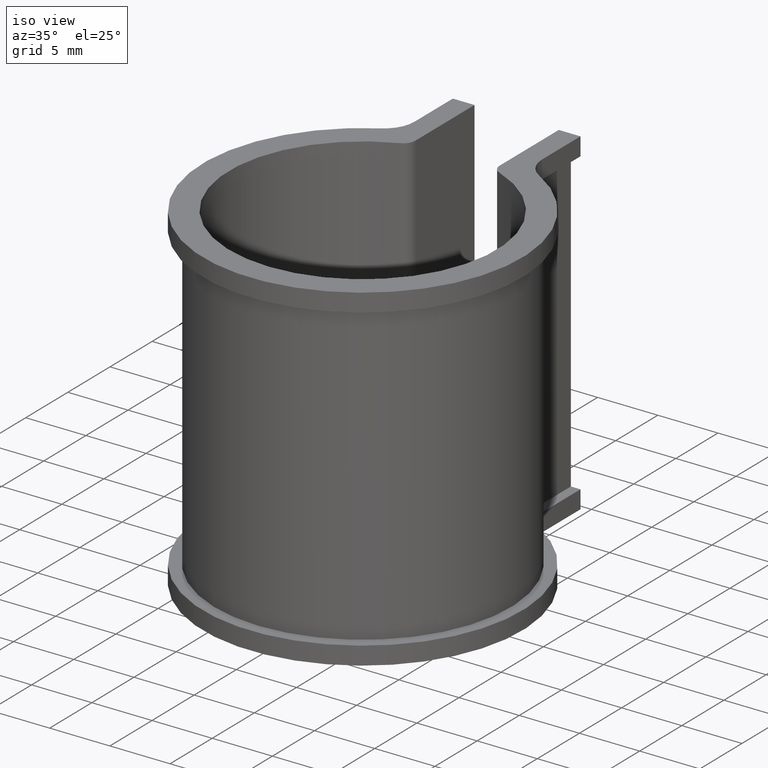
[diagram: clean part render]
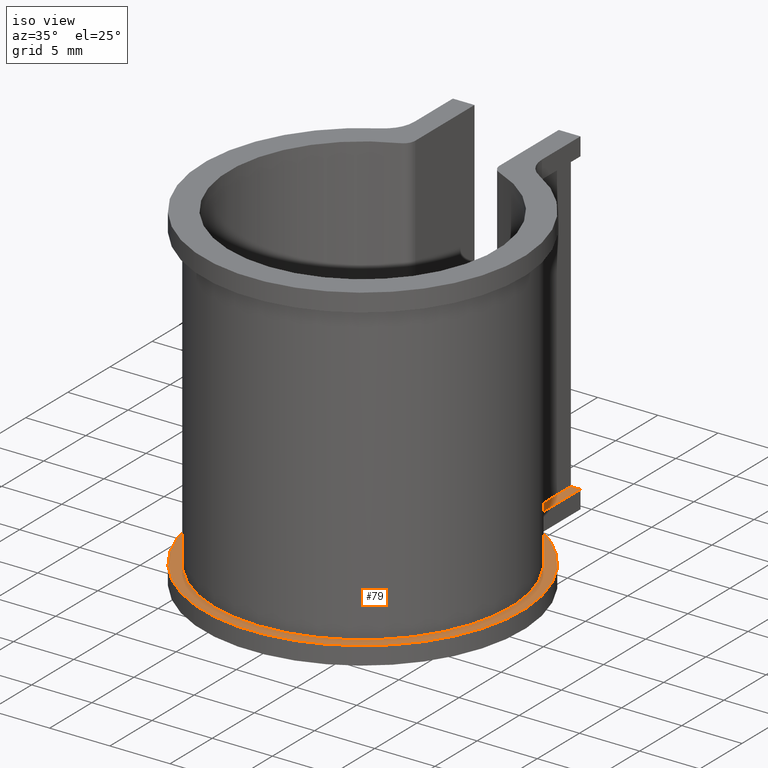
[diagram: same view with one face highlighted and labeled with its STEP entity id]
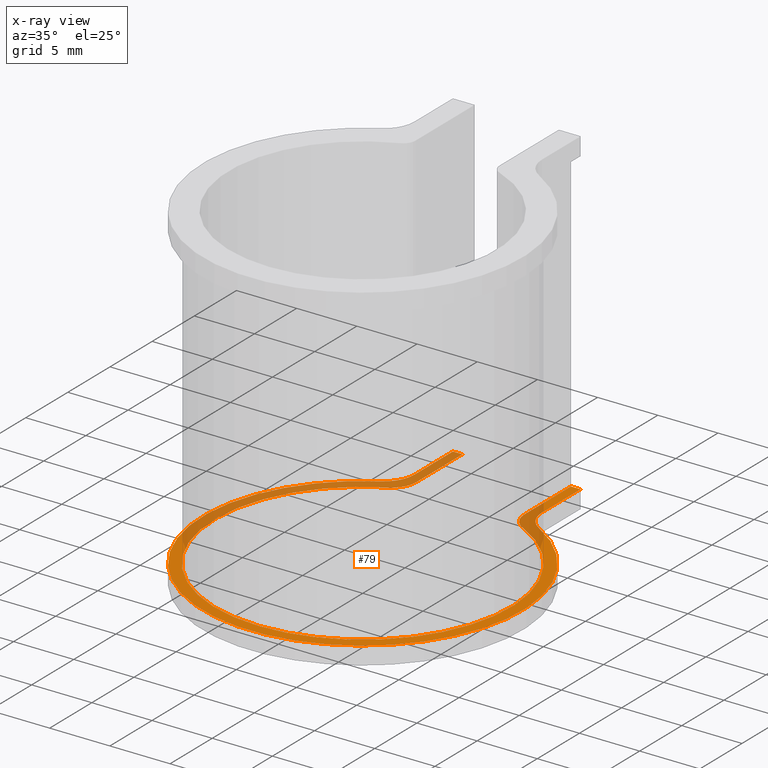
[diagram: x-ray of the same camera — body ghosted, the highlighted face saturated]
A machine part, iso view. The second image highlights one B-rep face of the part: STEP entity #79.
The next image is the same camera in x-ray: the body ghosted, the highlighted face saturated — about 38% of this face is hidden behind the body in this view.
In plain terms, the highlighted planar face has unit normal (0, 0, 1).
Its self-contained STEP definition (entity closure, byte-faithful):
#79 = ADVANCED_FACE( '', ( #110 ), #111, .T. );
#110 = FACE_OUTER_BOUND( '', #162, .T. );
#111 = PLANE( '', #163 );
#162 = EDGE_LOOP( '', ( #246, #247, #248, #249, #250, #251, #252, #253, #254, #255, #256, #257 ) );
#163 = AXIS2_PLACEMENT_3D( '', #258, #259, #260 );
#246 = ORIENTED_EDGE( '', *, *, #453, .F. );
#247 = ORIENTED_EDGE( '', *, *, #454, .T. );
#248 = ORIENTED_EDGE( '', *, *, #455, .F. );
#249 = ORIENTED_EDGE( '', *, *, #439, .T. );
#250 = ORIENTED_EDGE( '', *, *, #456, .T. );
#251 = ORIENTED_EDGE( '', *, *, #457, .T. );
#252 = ORIENTED_EDGE( '', *, *, #458, .T. );
#253 = ORIENTED_EDGE( '', *, *, #459, .T. );
#254 = ORIENTED_EDGE( '', *, *, #460, .T. );
#255 = ORIENTED_EDGE( '', *, *, #461, .T. );
#256 = ORIENTED_EDGE( '', *, *, #462, .F. );
#257 = ORIENTED_EDGE( '', *, *, #463, .T. );
#258 = CARTESIAN_POINT( '', ( 0.000000000000000, 0.000000000000000, -25.0000000000000 ) );
#259 = DIRECTION( '', ( 0.000000000000000, 0.000000000000000, 1.00000000000000 ) );
#260 = DIRECTION( '', ( 0.000000000000000, 1.00000000000000, 0.000000000000000 ) );
#439 = EDGE_CURVE( '', #508, #521, #523, .T. );
#453 = EDGE_CURVE( '', #548, #549, #550, .T. );
#454 = EDGE_CURVE( '', #548, #551, #552, .T. );
#455 = EDGE_CURVE( '', #508, #551, #553, .T. );
#456 = EDGE_CURVE( '', #521, #554, #555, .T. );
#457 = EDGE_CURVE( '', #554, #556, #557, .F. );
#458 = EDGE_CURVE( '', #556, #558, #559, .T. );
#459 = EDGE_CURVE( '', #558, #560, #561, .F. );
#460 = EDGE_CURVE( '', #560, #562, #563, .T. );
#461 = EDGE_CURVE( '', #562, #564, #565, .T. );
#462 = EDGE_CURVE( '', #566, #564, #567, .T. );
#463 = EDGE_CURVE( '', #566, #549, #568, .T. );
#508 = VERTEX_POINT( '', #632 );
#521 = VERTEX_POINT( '', #651 );
#523 = LINE( '', #654, #655 );
#548 = VERTEX_POINT( '', #687 );
#549 = VERTEX_POINT( '', #688 );
#550 = CIRCLE( '', #689, 12.3100000000000 );
#551 = VERTEX_POINT( '', #690 );
#552 = CIRCLE( '', #691, 2.00000000000000 );
#553 = LINE( '', #692, #693 );
#554 = VERTEX_POINT( '', #694 );
#555 = LINE( '', #695, #696 );
#556 = VERTEX_POINT( '', #697 );
#557 = CIRCLE( '', #698, 2.50000000000000 );
#558 = VERTEX_POINT( '', #699 );
#559 = CIRCLE( '', #700, 13.2600000000000 );
#560 = VERTEX_POINT( '', #701 );
#561 = CIRCLE( '', #702, 2.50000000000000 );
#562 = VERTEX_POINT( '', #703 );
#563 = LINE( '', #704, #705 );
#564 = VERTEX_POINT( '', #706 );
#565 = LINE( '', #707, #708 );
#566 = VERTEX_POINT( '', #709 );
#567 = LINE( '', #710, #711 );
#568 = CIRCLE( '', #712, 2.00000000000000 );
#632 = CARTESIAN_POINT( '', ( -4.49999999999999, 18.2580146622353, -25.0000000000000 ) );
#651 = CARTESIAN_POINT( '', ( -5.30000000000000, 18.2580146622353, -25.0000000000000 ) );
#654 = CARTESIAN_POINT( '', ( -3.50000000000000, 18.2580146622353, -25.0000000000000 ) );
#655 = VECTOR( '', #799, 1000.00000000000 );
#687 = CARTESIAN_POINT( '', ( -5.59154437456324, 10.9668013343586, -25.0000000000000 ) );
#688 = CARTESIAN_POINT( '', ( 5.59154437456324, 10.9668013343586, -25.0000000000000 ) );
#689 = AXIS2_PLACEMENT_3D( '', #825, #826, #827 );
#690 = CARTESIAN_POINT( '', ( -4.50000000000000, 12.7485724691041, -25.0000000000000 ) );
#691 = AXIS2_PLACEMENT_3D( '', #828, #829, #830 );
#692 = CARTESIAN_POINT( '', ( -4.50000000000000, 18.2580146622354, -25.0000000000000 ) );
#693 = VECTOR( '', #831, 1000.00000000000 );
#694 = CARTESIAN_POINT( '', ( -5.30000000000000, 13.6944368266826, -25.0000000000000 ) );
#695 = CARTESIAN_POINT( '', ( -5.30000000000000, 18.2580146622353, -25.0000000000000 ) );
#696 = VECTOR( '', #832, 1000.00000000000 );
#697 = CARTESIAN_POINT( '', ( -6.56269035532995, 11.5220959595058, -25.0000000000000 ) );
#698 = AXIS2_PLACEMENT_3D( '', #833, #834, #835 );
#699 = CARTESIAN_POINT( '', ( 6.56269035532995, 11.5220959595058, -25.0000000000000 ) );
#700 = AXIS2_PLACEMENT_3D( '', #836, #837, #838 );
#701 = CARTESIAN_POINT( '', ( 5.30000000000000, 13.6944368266826, -25.0000000000000 ) );
#702 = AXIS2_PLACEMENT_3D( '', #839, #840, #841 );
#703 = CARTESIAN_POINT( '', ( 5.30000000000000, 18.2580146622353, -25.0000000000000 ) );
#704 = CARTESIAN_POINT( '', ( 5.30000000000000, 12.1547357025975, -25.0000000000000 ) );
#705 = VECTOR( '', #842, 1000.00000000000 );
#706 = CARTESIAN_POINT( '', ( 4.50000000000000, 18.2580146622353, -25.0000000000000 ) );
#707 = CARTESIAN_POINT( '', ( 5.30000000000003, 18.2580146622353, -25.0000000000000 ) );
#708 = VECTOR( '', #843, 1000.00000000000 );
#709 = CARTESIAN_POINT( '', ( 4.50000000000000, 12.7485724691041, -25.0000000000000 ) );
#710 = CARTESIAN_POINT( '', ( 4.50000000000000, 11.4580146622353, -25.0000000000000 ) );
#711 = VECTOR( '', #844, 1000.00000000000 );
#712 = AXIS2_PLACEMENT_3D( '', #845, #846, #847 );
#799 = DIRECTION( '', ( -1.00000000000000, 0.000000000000000, 0.000000000000000 ) );
#825 = CARTESIAN_POINT( '', ( 0.000000000000000, 0.000000000000000, -25.0000000000000 ) );
#826 = DIRECTION( '', ( 0.000000000000000, 0.000000000000000, 1.00000000000000 ) );
#827 = DIRECTION( '', ( 1.00000000000000, 0.000000000000000, 0.000000000000000 ) );
#828 = CARTESIAN_POINT( '', ( -6.50000000000000, 12.7485724691041, -25.0000000000000 ) );
#829 = DIRECTION( '', ( 0.000000000000000, 0.000000000000000, 1.00000000000000 ) );
#830 = DIRECTION( '', ( 1.00000000000000, 0.000000000000000, 0.000000000000000 ) );
#831 = DIRECTION( '', ( -1.11022302462516E-016, -1.00000000000000, 0.000000000000000 ) );
#832 = DIRECTION( '', ( -6.12303176911189E-017, -1.00000000000000, 0.000000000000000 ) );
#833 = CARTESIAN_POINT( '', ( -7.80000000000000, 13.6944368266826, -25.0000000000000 ) );
#834 = DIRECTION( '', ( 0.000000000000000, 0.000000000000000, 1.00000000000000 ) );
#835 = DIRECTION( '', ( 1.00000000000000, 0.000000000000000, 0.000000000000000 ) );
#836 = CARTESIAN_POINT( '', ( 0.000000000000000, 0.000000000000000, -25.0000000000000 ) );
#837 = DIRECTION( '', ( 0.000000000000000, 0.000000000000000, 1.00000000000000 ) );
#838 = DIRECTION( '', ( 1.00000000000000, 0.000000000000000, 0.000000000000000 ) );
#839 = CARTESIAN_POINT( '', ( 7.80000000000000, 13.6944368266826, -25.0000000000000 ) );
#840 = DIRECTION( '', ( 0.000000000000000, 0.000000000000000, 1.00000000000000 ) );
#841 = DIRECTION( '', ( 1.00000000000000, 0.000000000000000, 0.000000000000000 ) );
#842 = DIRECTION( '', ( 6.12303176911189E-017, 1.00000000000000, 0.000000000000000 ) );
#843 = DIRECTION( '', ( -1.00000000000000, 0.000000000000000, 0.000000000000000 ) );
#844 = DIRECTION( '', ( 1.11022302462516E-016, 1.00000000000000, 0.000000000000000 ) );
#845 = CARTESIAN_POINT( '', ( 6.50000000000000, 12.7485724691041, -25.0000000000000 ) );
#846 = DIRECTION( '', ( 0.000000000000000, 0.000000000000000, 1.00000000000000 ) );
#847 = DIRECTION( '', ( 1.00000000000000, 0.000000000000000, 0.000000000000000 ) );